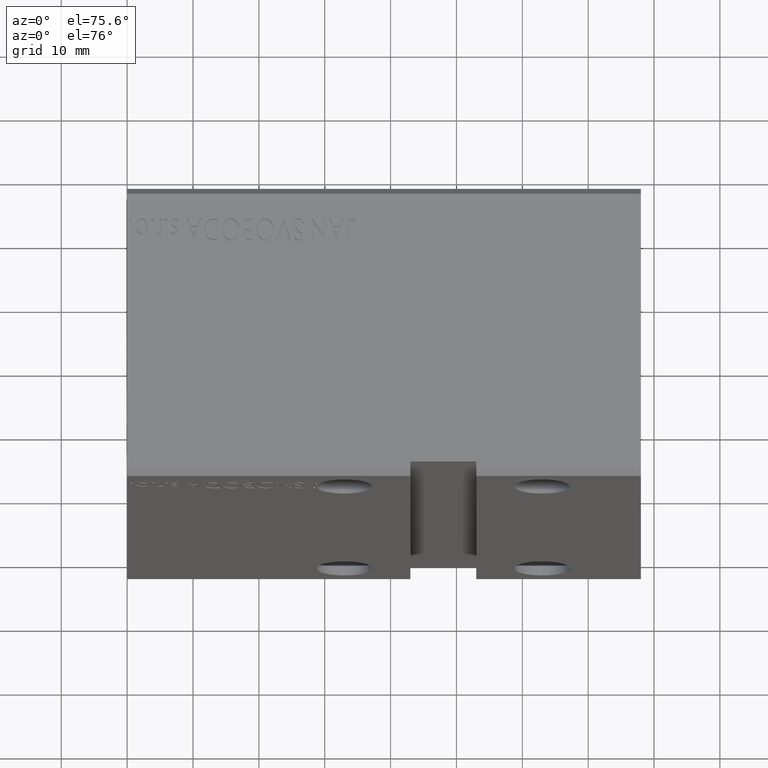
[diagram: clean part render]
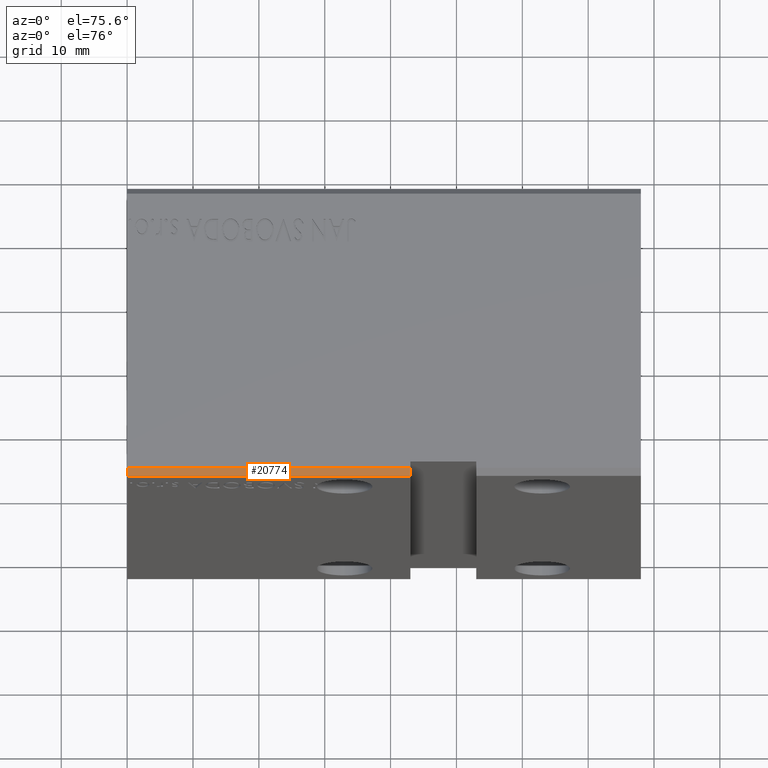
[diagram: same view with one face highlighted and labeled with its STEP entity id]
A machine part, auxiliary view. The second image highlights one B-rep face of the part: STEP entity #20774.
In plain terms, the highlighted planar face has unit normal (0, 0.7071, -0.7071).
Its self-contained STEP definition (entity closure, byte-faithful):
#658 = EDGE_CURVE ( 'NONE', #22277, #29502, #16879, .T. ) ;
#3945 = DIRECTION ( 'NONE',  ( 0.000000000000000000, 0.7071067811865474617, 0.7071067811865474617 ) ) ;
#5945 = LINE ( 'NONE', #17981, #14280 ) ;
#6065 = CARTESIAN_POINT ( 'NONE',  ( 0.000000000000000000, -22.50000000000001776, 31.50000000000000000 ) ) ;
#10749 = CARTESIAN_POINT ( 'NONE',  ( 78.00000000000000000, -22.50000000000001776, 31.50000000000000000 ) ) ;
#12372 = DIRECTION ( 'NONE',  ( -1.000000000000000000, -0.000000000000000000, -0.000000000000000000 ) ) ;
#13125 = DIRECTION ( 'NONE',  ( 0.000000000000000000, 0.7071067811865475727, -0.7071067811865475727 ) ) ;
#13617 = DIRECTION ( 'NONE',  ( -1.000000000000000000, -0.000000000000000000, -0.000000000000000000 ) ) ;
#14280 = VECTOR ( 'NONE', #24327, 1000.000000000000114 ) ;
#15113 = VERTEX_POINT ( 'NONE', #36134 ) ;
#16879 = LINE ( 'NONE', #10749, #31336 ) ;
#17981 = CARTESIAN_POINT ( 'NONE',  ( 43.00000000000000000, -21.50000000000001776, 32.50000000000000000 ) ) ;
#19113 = CARTESIAN_POINT ( 'NONE',  ( 0.000000000000000000, -21.50000000000001421, 32.50000000000000000 ) ) ;
#19844 = CARTESIAN_POINT ( 'NONE',  ( 78.00000000000000000, -21.50000000000001421, 32.50000000000000000 ) ) ;
#19870 = EDGE_LOOP ( 'NONE', ( #38645, #23275, #25361, #22967 ) ) ;
#20018 = EDGE_CURVE ( 'NONE', #22277, #15113, #5945, .T. ) ;
#20441 = DIRECTION ( 'NONE',  ( 0.000000000000000000, -0.7071067811865474617, -0.7071067811865474617 ) ) ;
#20774 = ADVANCED_FACE ( 'NONE', ( #31924 ), #32123, .F. ) ;
#20886 = CARTESIAN_POINT ( 'NONE',  ( 43.00000000000000000, -22.50000000000001776, 31.50000000000000000 ) ) ;
#22174 = CARTESIAN_POINT ( 'NONE',  ( 78.00000000000000000, -21.50000000000001421, 32.50000000000000000 ) ) ;
#22277 = VERTEX_POINT ( 'NONE', #20886 ) ;
#22967 = ORIENTED_EDGE ( 'NONE', *, *, #35706, .T. ) ;
#23275 = ORIENTED_EDGE ( 'NONE', *, *, #20018, .T. ) ;
#23710 = CARTESIAN_POINT ( 'NONE',  ( 0.000000000000000000, -21.50000000000001421, 32.50000000000000000 ) ) ;
#24327 = DIRECTION ( 'NONE',  ( -7.548521435979686927E-17, 0.7071067811865474617, 0.7071067811865474617 ) ) ;
#24935 = VECTOR ( 'NONE', #20441, 1000.000000000000114 ) ;
#25361 = ORIENTED_EDGE ( 'NONE', *, *, #32388, .T. ) ;
#28713 = VERTEX_POINT ( 'NONE', #19113 ) ;
#29502 = VERTEX_POINT ( 'NONE', #6065 ) ;
#29955 = AXIS2_PLACEMENT_3D ( 'NONE', #19844, #13125, #3945 ) ;
#31336 = VECTOR ( 'NONE', #13617, 1000.000000000000000 ) ;
#31924 = FACE_OUTER_BOUND ( 'NONE', #19870, .T. ) ;
#32123 = PLANE ( 'NONE',  #29955 ) ;
#32388 = EDGE_CURVE ( 'NONE', #15113, #28713, #37902, .T. ) ;
#32503 = LINE ( 'NONE', #23710, #24935 ) ;
#35706 = EDGE_CURVE ( 'NONE', #28713, #29502, #32503, .T. ) ;
#36134 = CARTESIAN_POINT ( 'NONE',  ( 43.00000000000000000, -21.50000000000001421, 32.50000000000000000 ) ) ;
#37278 = VECTOR ( 'NONE', #12372, 1000.000000000000000 ) ;
#37902 = LINE ( 'NONE', #22174, #37278 ) ;
#38645 = ORIENTED_EDGE ( 'NONE', *, *, #658, .F. ) ;